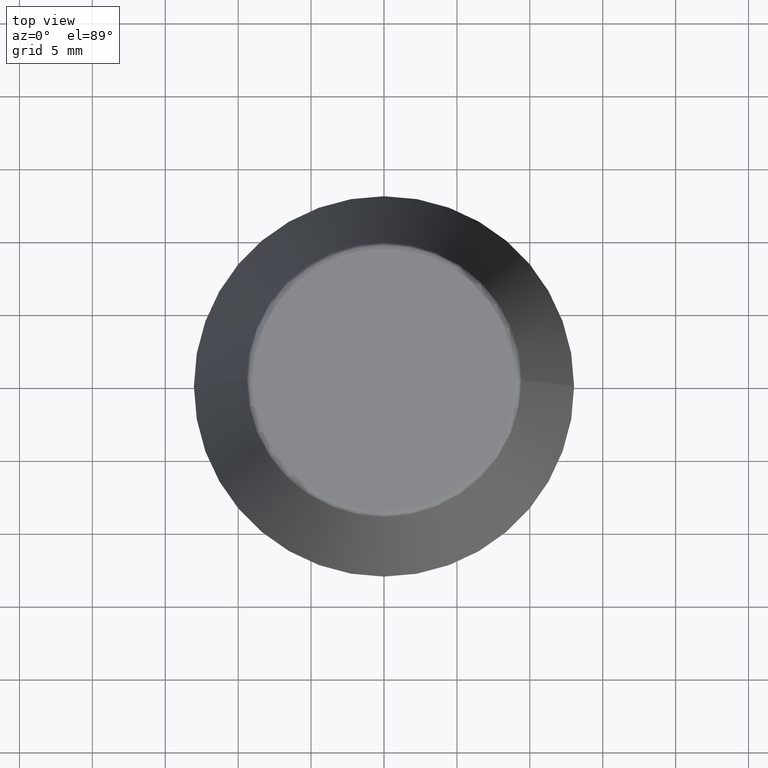
[diagram: clean part render]
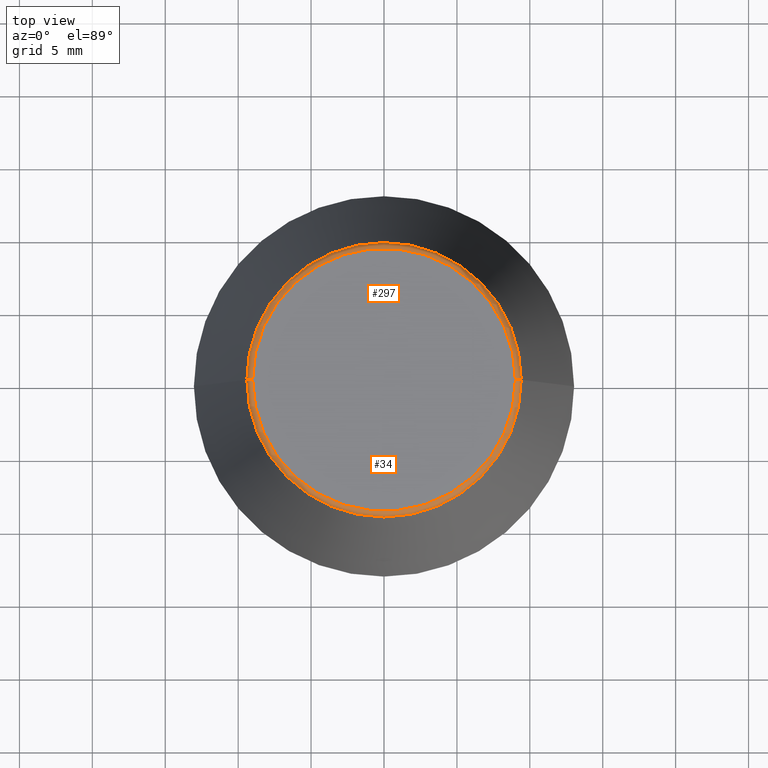
[diagram: same view with one multi-face feature highlighted, each face labeled with its STEP entity id]
A machine part, top view. The highlighted faces form ONE feature: a constant-radius fillet chain: 2 tangent blend faces with common blend radius 0.4 mm. The faces share edges in the B-rep.
Their STEP definitions:
[1] entity #34 (Torus):
#1 = DIRECTION ( 'NONE',  ( 1.000000000000000000, 0.0000000000000000000, 0.0000000000000000000 ) ) ;
#2 = CARTESIAN_POINT ( 'NONE',  ( 0.0000000000000000000, 0.0000000000000000000, 33.65566924038402900 ) ) ;
#7 = DIRECTION ( 'NONE',  ( 1.224646799147353200E-016, 1.000000000000000000, 0.0000000000000000000 ) ) ;
#34 = ADVANCED_FACE ( 'NONE', ( #46 ), #282, .T. ) ;
#40 = CARTESIAN_POINT ( 'NONE',  ( -9.408710285118862900, 0.0000000000000000000, 33.65566924038402900 ) ) ;
#43 = ORIENTED_EDGE ( 'NONE', *, *, #309, .F. ) ;
#46 = FACE_OUTER_BOUND ( 'NONE', #75, .T. ) ;
#70 = DIRECTION ( 'NONE',  ( -1.000000000000000000, 1.224646799147353200E-016, 0.0000000000000000000 ) ) ;
#74 = DIRECTION ( 'NONE',  ( 1.000000000000000000, 0.0000000000000000000, 0.0000000000000000000 ) ) ;
#75 = EDGE_LOOP ( 'NONE', ( #43, #253, #216, #289 ) ) ;
#110 = DIRECTION ( 'NONE',  ( -0.0000000000000000000, -0.0000000000000000000, 1.000000000000000000 ) ) ;
#115 = CIRCLE ( 'NONE', #355, 9.408710285118862900 ) ;
#117 = VERTEX_POINT ( 'NONE', #248 ) ;
#132 = DIRECTION ( 'NONE',  ( 0.0000000000000000000, 0.0000000000000000000, -1.000000000000000000 ) ) ;
#135 = VERTEX_POINT ( 'NONE', #335 ) ;
#136 = AXIS2_PLACEMENT_3D ( 'NONE', #370, #110, #74 ) ;
#153 = CARTESIAN_POINT ( 'NONE',  ( 9.012603057622234500, 0.0000000000000000000, 34.00000000000000000 ) ) ;
#171 = VERTEX_POINT ( 'NONE', #153 ) ;
#180 = DIRECTION ( 'NONE',  ( -0.0000000000000000000, -0.0000000000000000000, 1.000000000000000000 ) ) ;
#192 = EDGE_CURVE ( 'NONE', #334, #117, #115, .T. ) ;
#201 = EDGE_CURVE ( 'NONE', #135, #171, #357, .T. ) ;
#213 = AXIS2_PLACEMENT_3D ( 'NONE', #271, #180, #1 ) ;
#216 = ORIENTED_EDGE ( 'NONE', *, *, #316, .T. ) ;
#248 = CARTESIAN_POINT ( 'NONE',  ( 9.408710285118862900, 1.374377508408924700E-015, 33.65566924038402900 ) ) ;
#249 = DIRECTION ( 'NONE',  ( 0.0000000000000000000, -1.000000000000000000, 0.0000000000000000000 ) ) ;
#253 = ORIENTED_EDGE ( 'NONE', *, *, #192, .T. ) ;
#271 = CARTESIAN_POINT ( 'NONE',  ( 0.0000000000000000000, 0.0000000000000000000, 34.00000000000000000 ) ) ;
#273 = DIRECTION ( 'NONE',  ( -0.0000000000000000000, -0.0000000000000000000, 1.000000000000000000 ) ) ;
#282 = TOROIDAL_SURFACE ( 'NONE', #136, 9.012603057622234500, 0.4000000000000009700 ) ;
#289 = ORIENTED_EDGE ( 'NONE', *, *, #201, .F. ) ;
#302 = DIRECTION ( 'NONE',  ( 1.000000000000000000, 0.0000000000000000000, 0.0000000000000000000 ) ) ;
#309 = EDGE_CURVE ( 'NONE', #334, #135, #311, .T. ) ;
#311 = CIRCLE ( 'NONE', #361, 0.4000000000000010200 ) ;
#316 = EDGE_CURVE ( 'NONE', #117, #171, #318, .T. ) ;
#318 = CIRCLE ( 'NONE', #360, 0.3999999999999975800 ) ;
#333 = CARTESIAN_POINT ( 'NONE',  ( -9.012603057622234500, 1.103725548650271700E-015, 33.60000000000000100 ) ) ;
#334 = VERTEX_POINT ( 'NONE', #40 ) ;
#335 = CARTESIAN_POINT ( 'NONE',  ( -9.012603057622234500, 1.127980121063915600E-015, 34.00000000000000000 ) ) ;
#355 = AXIS2_PLACEMENT_3D ( 'NONE', #2, #273, #302 ) ;
#357 = CIRCLE ( 'NONE', #213, 9.012603057622234500 ) ;
#360 = AXIS2_PLACEMENT_3D ( 'NONE', #382, #249, #132 ) ;
#361 = AXIS2_PLACEMENT_3D ( 'NONE', #333, #7, #70 ) ;
#370 = CARTESIAN_POINT ( 'NONE',  ( 0.0000000000000000000, 0.0000000000000000000, 33.60000000000000100 ) ) ;
#382 = CARTESIAN_POINT ( 'NONE',  ( 9.012603057622234500, 0.0000000000000000000, 33.60000000000000100 ) ) ;
[2] entity #297 (Torus):
#7 = DIRECTION ( 'NONE',  ( 1.224646799147353200E-016, 1.000000000000000000, 0.0000000000000000000 ) ) ;
#20 = ORIENTED_EDGE ( 'NONE', *, *, #316, .F. ) ;
#40 = CARTESIAN_POINT ( 'NONE',  ( -9.408710285118862900, 0.0000000000000000000, 33.65566924038402900 ) ) ;
#53 = ORIENTED_EDGE ( 'NONE', *, *, #320, .F. ) ;
#57 = CIRCLE ( 'NONE', #292, 9.012603057622234500 ) ;
#70 = DIRECTION ( 'NONE',  ( -1.000000000000000000, 1.224646799147353200E-016, 0.0000000000000000000 ) ) ;
#85 = EDGE_LOOP ( 'NONE', ( #375, #312, #53, #20 ) ) ;
#106 = CIRCLE ( 'NONE', #325, 9.408710285118862900 ) ;
#117 = VERTEX_POINT ( 'NONE', #248 ) ;
#132 = DIRECTION ( 'NONE',  ( 0.0000000000000000000, 0.0000000000000000000, -1.000000000000000000 ) ) ;
#135 = VERTEX_POINT ( 'NONE', #335 ) ;
#153 = CARTESIAN_POINT ( 'NONE',  ( 9.012603057622234500, 0.0000000000000000000, 34.00000000000000000 ) ) ;
#155 = DIRECTION ( 'NONE',  ( 1.000000000000000000, 0.0000000000000000000, 0.0000000000000000000 ) ) ;
#164 = FACE_OUTER_BOUND ( 'NONE', #85, .T. ) ;
#171 = VERTEX_POINT ( 'NONE', #153 ) ;
#185 = CARTESIAN_POINT ( 'NONE',  ( 0.0000000000000000000, 0.0000000000000000000, 34.00000000000000000 ) ) ;
#205 = DIRECTION ( 'NONE',  ( -0.0000000000000000000, -0.0000000000000000000, 1.000000000000000000 ) ) ;
#226 = EDGE_CURVE ( 'NONE', #117, #334, #106, .T. ) ;
#237 = CARTESIAN_POINT ( 'NONE',  ( 0.0000000000000000000, 0.0000000000000000000, 33.65566924038402900 ) ) ;
#247 = DIRECTION ( 'NONE',  ( -0.0000000000000000000, -0.0000000000000000000, 1.000000000000000000 ) ) ;
#248 = CARTESIAN_POINT ( 'NONE',  ( 9.408710285118862900, 1.374377508408924700E-015, 33.65566924038402900 ) ) ;
#249 = DIRECTION ( 'NONE',  ( 0.0000000000000000000, -1.000000000000000000, 0.0000000000000000000 ) ) ;
#251 = DIRECTION ( 'NONE',  ( -0.0000000000000000000, -0.0000000000000000000, 1.000000000000000000 ) ) ;
#278 = AXIS2_PLACEMENT_3D ( 'NONE', #284, #247, #155 ) ;
#284 = CARTESIAN_POINT ( 'NONE',  ( 0.0000000000000000000, 0.0000000000000000000, 33.60000000000000100 ) ) ;
#292 = AXIS2_PLACEMENT_3D ( 'NONE', #185, #251, #340 ) ;
#297 = ADVANCED_FACE ( 'NONE', ( #164 ), #314, .T. ) ;
#299 = DIRECTION ( 'NONE',  ( 1.000000000000000000, 0.0000000000000000000, 0.0000000000000000000 ) ) ;
#309 = EDGE_CURVE ( 'NONE', #334, #135, #311, .T. ) ;
#311 = CIRCLE ( 'NONE', #361, 0.4000000000000010200 ) ;
#312 = ORIENTED_EDGE ( 'NONE', *, *, #309, .T. ) ;
#314 = TOROIDAL_SURFACE ( 'NONE', #278, 9.012603057622234500, 0.4000000000000009700 ) ;
#316 = EDGE_CURVE ( 'NONE', #117, #171, #318, .T. ) ;
#318 = CIRCLE ( 'NONE', #360, 0.3999999999999975800 ) ;
#320 = EDGE_CURVE ( 'NONE', #171, #135, #57, .T. ) ;
#325 = AXIS2_PLACEMENT_3D ( 'NONE', #237, #205, #299 ) ;
#333 = CARTESIAN_POINT ( 'NONE',  ( -9.012603057622234500, 1.103725548650271700E-015, 33.60000000000000100 ) ) ;
#334 = VERTEX_POINT ( 'NONE', #40 ) ;
#335 = CARTESIAN_POINT ( 'NONE',  ( -9.012603057622234500, 1.127980121063915600E-015, 34.00000000000000000 ) ) ;
#340 = DIRECTION ( 'NONE',  ( 1.000000000000000000, 0.0000000000000000000, 0.0000000000000000000 ) ) ;
#360 = AXIS2_PLACEMENT_3D ( 'NONE', #382, #249, #132 ) ;
#361 = AXIS2_PLACEMENT_3D ( 'NONE', #333, #7, #70 ) ;
#375 = ORIENTED_EDGE ( 'NONE', *, *, #226, .T. ) ;
#382 = CARTESIAN_POINT ( 'NONE',  ( 9.012603057622234500, 0.0000000000000000000, 33.60000000000000100 ) ) ;